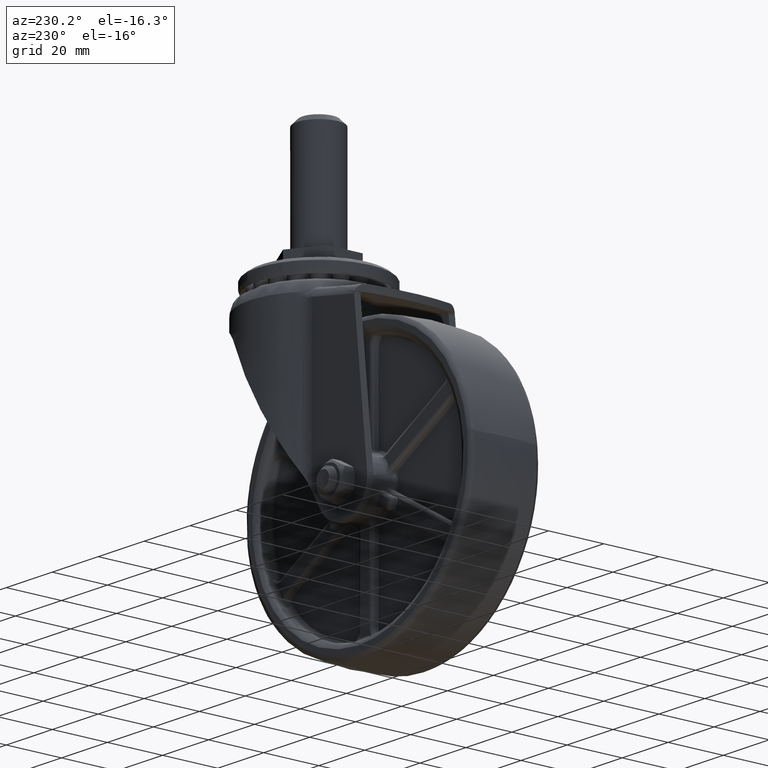
[diagram: clean part render]
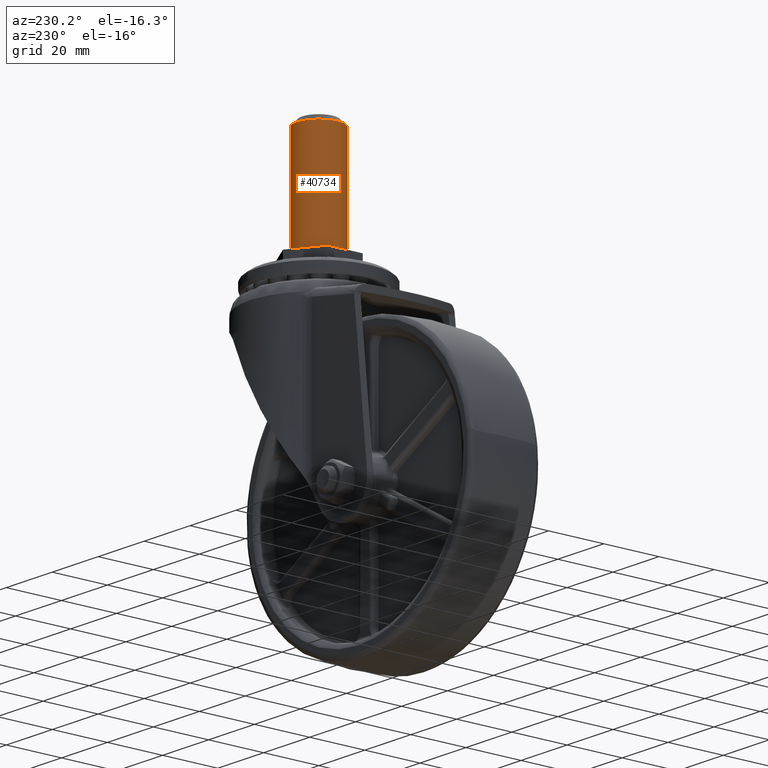
[diagram: same view with one face highlighted and labeled with its STEP entity id]
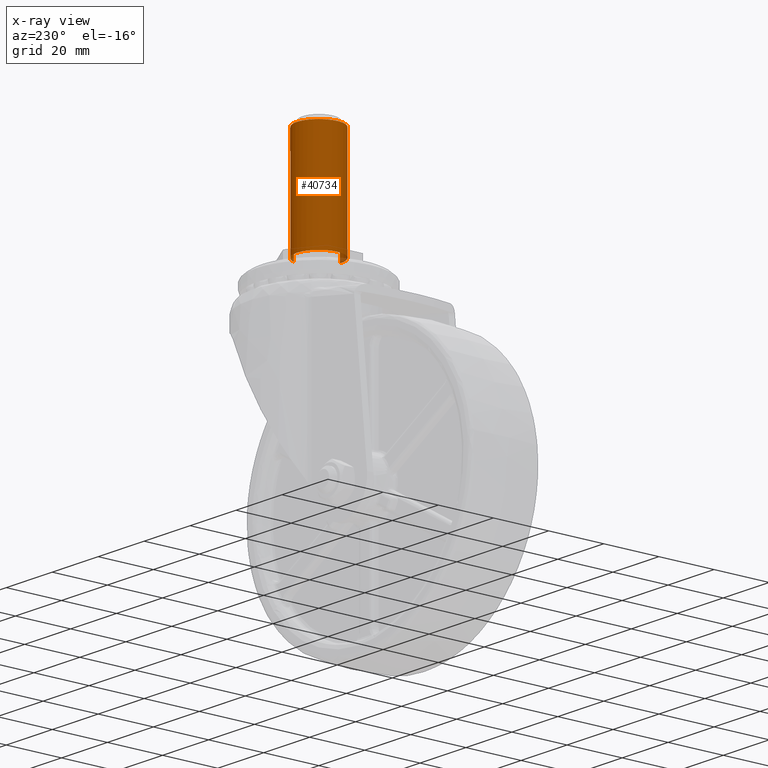
[diagram: x-ray of the same camera — body ghosted, the highlighted face saturated]
A machine part, auxiliary view. The second image highlights one B-rep face of the part: STEP entity #40734.
The next image is the same camera in x-ray: the body ghosted, the highlighted face saturated — about 1% of this face is hidden behind the body in this view.
In plain terms, the highlighted face is a freeform B-spline surface patch.
Its self-contained STEP definition (entity closure, byte-faithful):
#40552=CARTESIAN_POINT('',(39.489150386329626,2.812939119660041,114.000004000000000));
#40553=VERTEX_POINT('',#40552);
#40569=CARTESIAN_POINT('',(32.488388316617602,-7.985078387399101,114.000003999910400));
#40570=VERTEX_POINT('',#40569);
#40584=CARTESIAN_POINT('',(32.488388316479899,-7.985078387362638,76.000003999999905));
#40585=VERTEX_POINT('',#40584);
#40586=CARTESIAN_POINT('',(32.488388316617602,-7.985078387399101,114.000003999910400));
#40587=CARTESIAN_POINT('',(32.488388316479899,-7.985078387362638,76.000003999999905));
#40588=QUASI_UNIFORM_CURVE('',1,(#40586,#40587),.UNSPECIFIED.,.F.,.U.);
#40589=EDGE_CURVE('',#40570,#40585,#40588,.T.);
#40606=CARTESIAN_POINT('',(39.489151868820933,2.812935172671272,76.000003999999905));
#40607=VERTEX_POINT('',#40606);
#40621=CARTESIAN_POINT('',(39.489150386329626,2.812939119660041,114.000004000000000));
#40622=CARTESIAN_POINT('',(39.489151868820933,2.812935172671272,76.000003999999905));
#40623=QUASI_UNIFORM_CURVE('',1,(#40621,#40622),.UNSPECIFIED.,.F.,.U.);
#40624=EDGE_CURVE('',#40553,#40607,#40623,.T.);
#40629=CARTESIAN_POINT('',(32.488388316278858,-7.985078387374934,114.950004000000010));
#40630=CARTESIAN_POINT('',(24.503309928903928,-8.473466703653790,114.950004000000040));
#40631=CARTESIAN_POINT('',(24.014921612625070,-0.488388316278856,114.950004000000010));
#40632=CARTESIAN_POINT('',(23.526533296346219,7.496690071096078,114.950004000000040));
#40633=CARTESIAN_POINT('',(31.511611683721149,7.985078387374934,114.950004000000010));
#40634=CARTESIAN_POINT('',(37.410956654424524,8.345897782954735,114.950004000000020));
#40635=CARTESIAN_POINT('',(39.489148630213265,2.812943795132577,114.950004000000060));
#40636=CARTESIAN_POINT('',(32.488388316278858,-7.985078387374934,75.026253999999881));
#40637=CARTESIAN_POINT('',(24.503309928903928,-8.473466703653790,75.026253999999881));
#40638=CARTESIAN_POINT('',(24.014921612625070,-0.488388316278856,75.026253999999881));
#40639=CARTESIAN_POINT('',(23.526533296346219,7.496690071096078,75.026253999999881));
#40640=CARTESIAN_POINT('',(31.511611683721149,7.985078387374934,75.026253999999881));
#40641=CARTESIAN_POINT('',(37.410956654424524,8.345897782954735,75.026253999999867));
#40642=CARTESIAN_POINT('',(39.489148630213265,2.812943795132577,75.026253999999881));
#40650=(BOUNDED_SURFACE()B_SPLINE_SURFACE(2,1,((#40629,#40636),(#40630,#40637),(#40631,#40638),(#40632,#40639),(#40633,#40640),(#40634,#40641),(#40635,#40642)),.UNSPECIFIED.,.F.,.F.,.U.)B_SPLINE_SURFACE_WITH_KNOTS((3,2,2,3),(2,2),(0.0,13.254833995939039,26.509667991878079,37.113535188629307),(0.0,39.923750000000169),.UNSPECIFIED.)GEOMETRIC_REPRESENTATION_ITEM()RATIONAL_B_SPLINE_SURFACE(((1.0,1.0),(0.707106781186548,0.707106781186548),(1.0,1.0),(0.707106781186548,0.707106781186548),(1.0,1.0),(0.765685424949238,0.765685424949238),(0.906274169979695,0.906274169979695)))REPRESENTATION_ITEM('')SURFACE());
#40651=CARTESIAN_POINT('',(31.055726122267298,7.944076210912941,114.000003999939910));
#40652=VERTEX_POINT('',#40651);
#40653=CARTESIAN_POINT('',(31.055726122267306,7.944076210912941,114.000003999939960));
#40654=CARTESIAN_POINT('',(31.526207042308201,8.0,114.000004000000000));
#40655=CARTESIAN_POINT('',(32.0,8.0,114.000004000000000));
#40656=CARTESIAN_POINT('',(37.540880460679908,8.0,114.000004000000030));
#40657=CARTESIAN_POINT('',(39.489150386329619,2.812939119660041,114.000004000000000));
#40665=(BOUNDED_CURVE()B_SPLINE_CURVE(2,(#40653,#40654,#40655,#40656,#40657),.UNSPECIFIED.,.F.,.U.)B_SPLINE_CURVE_WITH_KNOTS((3,2,3),(0.229562473495581,0.250000000000000,0.440284269506952),.UNSPECIFIED.)CURVE()GEOMETRIC_REPRESENTATION_ITEM()RATIONAL_B_SPLINE_CURVE((0.956026754148561,0.976055948310142,1.0,0.777068111258169,0.893499675308694))REPRESENTATION_ITEM(''));
#40666=EDGE_CURVE('',#40652,#40553,#40665,.T.);
#40667=ORIENTED_EDGE('',*,*,#40666,.T.);
#40668=ORIENTED_EDGE('',*,*,#40624,.T.);
#40669=CARTESIAN_POINT('',(24.0,0.0,76.000003999999905));
#40670=VERTEX_POINT('',#40669);
#40671=CARTESIAN_POINT('',(24.0,0.0,76.000003999999905));
#40672=CARTESIAN_POINT('',(23.999999999999996,8.0,76.000003999999905));
#40673=CARTESIAN_POINT('',(32.0,8.0,76.000003999999905));
#40674=CARTESIAN_POINT('',(37.540883580068268,8.0,76.000003999999919));
#40675=CARTESIAN_POINT('',(39.489151868820926,2.812935172671271,76.000003999999905));
#40683=(BOUNDED_CURVE()B_SPLINE_CURVE(2,(#40671,#40672,#40673,#40674,#40675),.UNSPECIFIED.,.F.,.U.)B_SPLINE_CURVE_WITH_KNOTS((3,2,3),(0.0,0.250000000000000,0.440284352750884),.UNSPECIFIED.)CURVE()GEOMETRIC_REPRESENTATION_ITEM()RATIONAL_B_SPLINE_CURVE((1.0,0.707106781186548,1.0,0.777068013731836,0.893499777179725))REPRESENTATION_ITEM(''));
#40684=EDGE_CURVE('',#40670,#40607,#40683,.T.);
#40685=ORIENTED_EDGE('',*,*,#40684,.F.);
#40686=CARTESIAN_POINT('',(32.488388316479899,-7.985078387362638,76.000003999999905));
#40687=CARTESIAN_POINT('',(32.244422106590321,-8.0,76.000003999999905));
#40688=CARTESIAN_POINT('',(32.0,-8.0,76.000003999999905));
#40689=CARTESIAN_POINT('',(23.999999999999996,-8.0,76.000003999999905));
#40690=CARTESIAN_POINT('',(24.0,0.0,76.000003999999905));
#40698=(BOUNDED_CURVE()B_SPLINE_CURVE(2,(#40686,#40687,#40688,#40689,#40690),.UNSPECIFIED.,.F.,.U.)B_SPLINE_CURVE_WITH_KNOTS((3,2,3),(0.739332962233280,0.750000000000000,1.0),.UNSPECIFIED.)CURVE()GEOMETRIC_REPRESENTATION_ITEM()RATIONAL_B_SPLINE_CURVE((0.976072041654580,0.987502787893202,1.0,0.707106781186548,1.0))REPRESENTATION_ITEM(''));
#40699=EDGE_CURVE('',#40585,#40670,#40698,.T.);
#40700=ORIENTED_EDGE('',*,*,#40699,.F.);
#40701=ORIENTED_EDGE('',*,*,#40589,.F.);
#40702=CARTESIAN_POINT('',(24.0,0.0,114.000004000000000));
#40703=VERTEX_POINT('',#40702);
#40704=CARTESIAN_POINT('',(32.488388316617595,-7.985078387399101,114.000003999910450));
#40705=CARTESIAN_POINT('',(32.244422107062597,-8.0,114.000004000000000));
#40706=CARTESIAN_POINT('',(32.0,-8.0,114.000004000000000));
#40707=CARTESIAN_POINT('',(23.999999999999996,-8.0,114.000004000000020));
#40708=CARTESIAN_POINT('',(24.0,0.0,114.000004000000000));
#40716=(BOUNDED_CURVE()B_SPLINE_CURVE(2,(#40704,#40705,#40706,#40707,#40708),.UNSPECIFIED.,.F.,.U.)B_SPLINE_CURVE_WITH_KNOTS((3,2,3),(0.739332962212926,0.750000000000000,1.0),.UNSPECIFIED.)CURVE()GEOMETRIC_REPRESENTATION_ITEM()RATIONAL_B_SPLINE_CURVE((0.976072041610958,0.987502787869357,1.0,0.707106781186548,1.0))REPRESENTATION_ITEM(''));
#40717=EDGE_CURVE('',#40570,#40703,#40716,.T.);
#40718=ORIENTED_EDGE('',*,*,#40717,.T.);
#40719=CARTESIAN_POINT('',(24.0,0.0,114.000004000000000));
#40720=CARTESIAN_POINT('',(24.000000000000007,7.105396206761487,114.000004000000030));
#40721=CARTESIAN_POINT('',(31.055726122267302,7.944076210912941,114.000003999939990));
#40729=(BOUNDED_CURVE()B_SPLINE_CURVE(2,(#40719,#40720,#40721),.UNSPECIFIED.,.F.,.U.)B_SPLINE_CURVE_WITH_KNOTS((3,3),(0.0,0.229562473495581),.UNSPECIFIED.)CURVE()GEOMETRIC_REPRESENTATION_ITEM()RATIONAL_B_SPLINE_CURVE((1.0,0.731050832876406,0.956026754148561))REPRESENTATION_ITEM(''));
#40730=EDGE_CURVE('',#40703,#40652,#40729,.T.);
#40731=ORIENTED_EDGE('',*,*,#40730,.T.);
#40732=EDGE_LOOP('',(#40667,#40668,#40685,#40700,#40701,#40718,#40731));
#40733=FACE_OUTER_BOUND('',#40732,.T.);
#40734=ADVANCED_FACE('',(#40733),#40650,.T.);